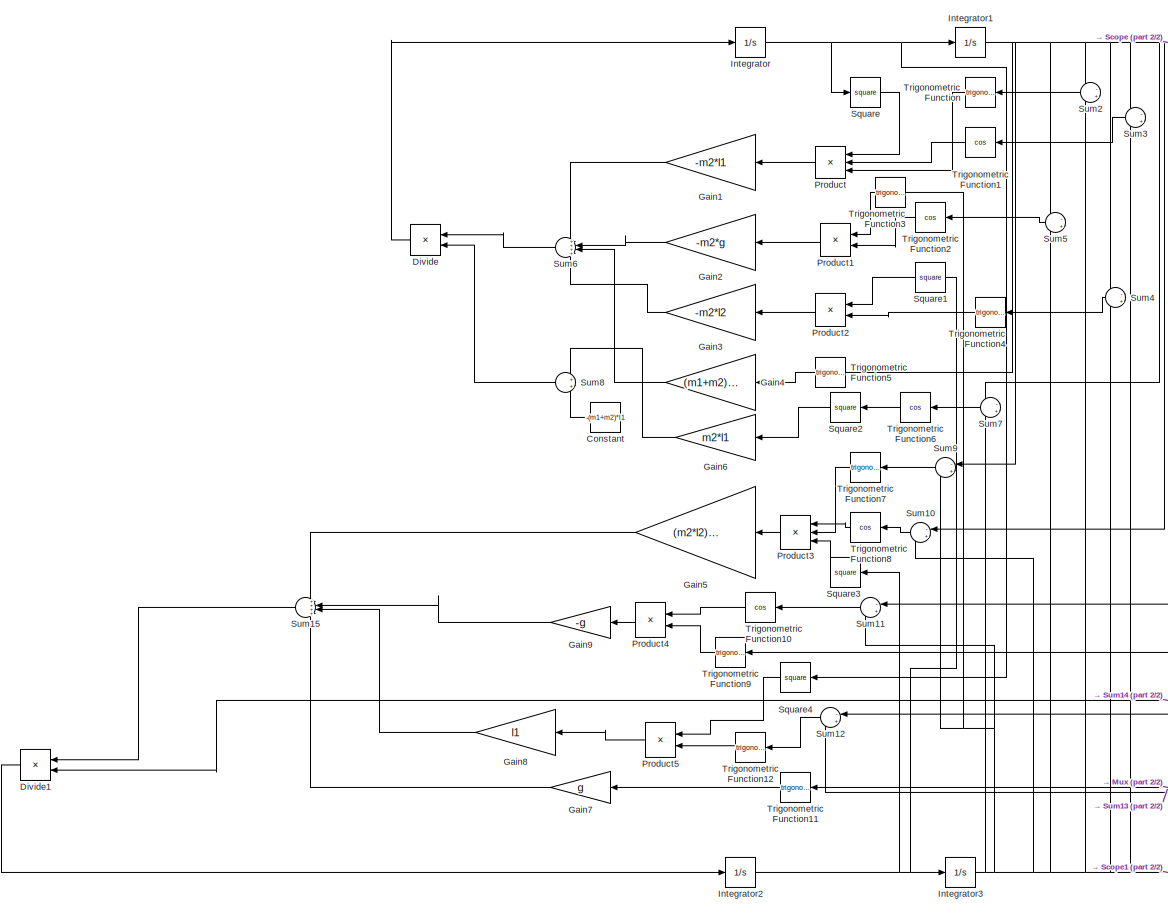
[diagram: root canvas - part 1/2, left side, full height]
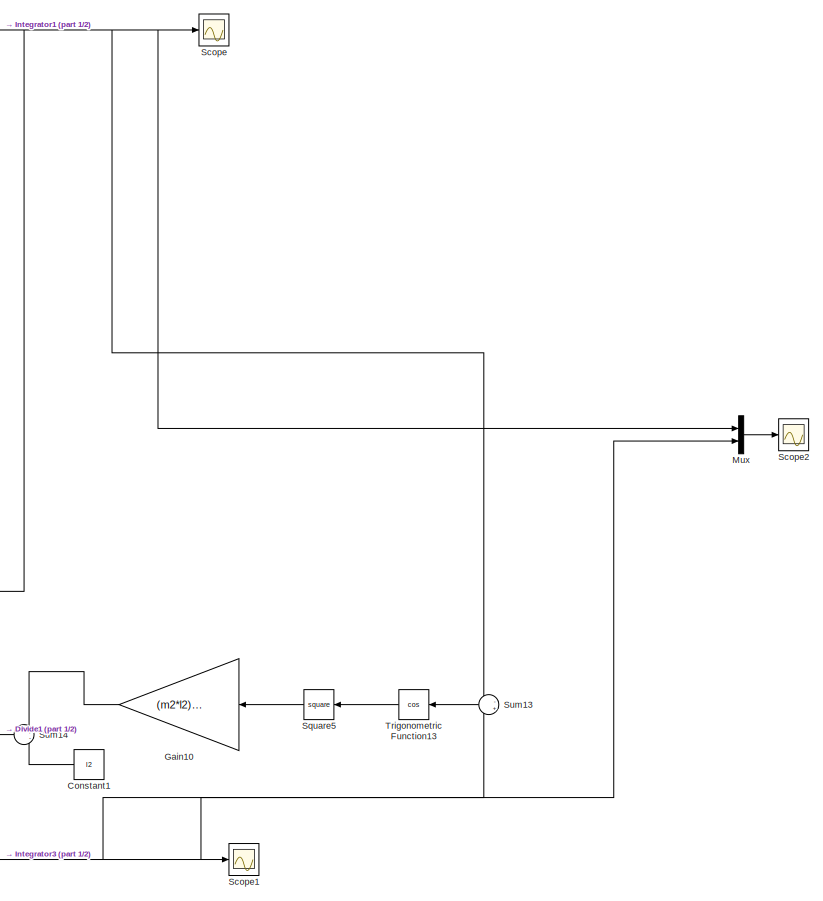
[diagram: root canvas - part 2/2, right side, full height]
MODEL slx_65d11037a7d4
KIND model
CONFIG AbsTol = auto
CONFIG EnableMultiTasking = off
CONFIG FixedStep = auto
CONFIG MaxStep = auto
CONFIG MinStep = auto
CONFIG RelTol = 1e-3
CONFIG SampleTimeConstraint = Unconstrained
CONFIG SolverName = ode23
CONFIG StartTime = 0.0
CONFIG StopTime = 200
BLOCK [Constant] Constant
  NameLocation = top
  Value = -(m1+m2)*l1
BLOCK [Constant] Constant1
  NameLocation = top
  Value = l2
BLOCK [Product] Divide
  Inputs = */
  NameLocation = top
BLOCK [Product] Divide1
  Inputs = */
  NameLocation = top
BLOCK [Gain] Gain1
  Gain = -m2*l1
  NameLocation = top
BLOCK [Gain] Gain10
  Gain = (m2*l2)/(m1+m2)
  NameLocation = top
BLOCK [Gain] Gain2
  Gain = -m2*g
  NameLocation = top
BLOCK [Gain] Gain3
  Gain = -m2*l2
  NameLocation = top
BLOCK [Gain] Gain4
  Gain = (m1+m2)*g
  NameLocation = top
BLOCK [Gain] Gain5
  Gain = (m2*l2)/(m1+m2)
  NameLocation = top
BLOCK [Gain] Gain6
  Gain = m2*l1
  NameLocation = top
BLOCK [Gain] Gain7
  Gain = g
  NameLocation = top
BLOCK [Gain] Gain8
  Gain = l1
  NameLocation = top
BLOCK [Gain] Gain9
  Gain = -g
  NameLocation = top
BLOCK [Integrator] Integrator
BLOCK [Integrator] Integrator1
BLOCK [Integrator] Integrator2
BLOCK [Integrator] Integrator3
  InitialCondition = 0.61086
BLOCK [Mux] Mux
  DisplayOption = bar
  Inputs = 2
BLOCK [Product] Product
  Inputs = 3
  NameLocation = top
BLOCK [Product] Product1
  NameLocation = top
BLOCK [Product] Product2
  NameLocation = top
BLOCK [Product] Product3
  Inputs = 3
  NameLocation = top
BLOCK [Product] Product4
  NameLocation = top
BLOCK [Product] Product5
  NameLocation = top
BLOCK [Scope] Scope
  Floating = off
  NumInputPorts = 1
  ScopeSpecificationString = Simulink.scopes.TimeScopeBlockCfg('CurrentConfiguration', extmgr.ConfigurationSet(extmgr.Configuration('Core','General UI',true),extmgr.Configuration('Core','Source UI',true),extmgr.Configuration('Sources','WiredSimulink',true),extmgr.Configuration('Visuals','Time Domain',true,'SerializedDisplays',{struct('MinYLimReal','-0.38689','MaxYLimReal','0.3781','YLabelReal','','MinYLimMag','0.00000','MaxYL...<+1358ch>
BLOCK [Scope] Scope1
  Floating = off
  NumInputPorts = 1
  ScopeSpecificationString = Simulink.scopes.TimeScopeBlockCfg('CurrentConfiguration', extmgr.ConfigurationSet(extmgr.Configuration('Core','General UI',true),extmgr.Configuration('Core','Source UI',true),extmgr.Configuration('Sources','WiredSimulink',true,'DataLoggingVariableName','ScopeData1'),extmgr.Configuration('Visuals','Time Domain',true,'SerializedDisplays',{struct('MinYLimReal','-0.73518','MaxYLimReal','0.76042','YLab...<+1399ch>
BLOCK [Scope] Scope2
  Floating = off
  NumInputPorts = 1
  ScopeSpecificationString = Simulink.scopes.TimeScopeBlockCfg('CurrentConfiguration', extmgr.ConfigurationSet(extmgr.Configuration('Core','General UI',true),extmgr.Configuration('Core','Source UI',true),extmgr.Configuration('Sources','WiredSimulink',true,'DataLoggingVariableName','ScopeData1'),extmgr.Configuration('Visuals','Time Domain',true,'SerializedDisplays',{struct('MinYLimReal','-0.73518','MaxYLimReal','0.76042','YLab...<+1413ch>
BLOCK [Math] Square
  Operator = square
BLOCK [Math] Square1
  NameLocation = top
  Operator = square
BLOCK [Math] Square2
  NameLocation = top
  Operator = square
BLOCK [Math] Square3
  NameLocation = top
  Operator = square
BLOCK [Math] Square4
  NameLocation = top
  Operator = square
BLOCK [Math] Square5
  NameLocation = top
  Operator = square
BLOCK [Sum] Sum10
  Inputs = -+
  NameLocation = top
BLOCK [Sum] Sum11
  Inputs = -+
  NameLocation = top
BLOCK [Sum] Sum12
  Inputs = -+
  NameLocation = top
BLOCK [Sum] Sum13
  Inputs = -+
  NameLocation = top
BLOCK [Sum] Sum14
  Inputs = +-
  NameLocation = top
BLOCK [Sum] Sum15
  Inputs = ++++
  NameLocation = top
BLOCK [Sum] Sum2
  Inputs = -+
  NameLocation = top
BLOCK [Sum] Sum3
  Inputs = -+
  NameLocation = top
BLOCK [Sum] Sum4
  Inputs = -+
  NameLocation = top
BLOCK [Sum] Sum5
  Inputs = -+
  NameLocation = top
BLOCK [Sum] Sum6
  Inputs = ++++
  NameLocation = top
BLOCK [Sum] Sum7
  Inputs = -+
  NameLocation = top
BLOCK [Sum] Sum8
  NameLocation = top
BLOCK [Sum] Sum9
  Inputs = -+
  NameLocation = top
BLOCK [Trigonometry] Trigonometric Function
  NameLocation = top
BLOCK [Trigonometry] Trigonometric Function1
  NameLocation = top
  Operator = cos
BLOCK [Trigonometry] Trigonometric Function10
  NameLocation = top
  Operator = cos
BLOCK [Trigonometry] Trigonometric Function11
  NameLocation = top
BLOCK [Trigonometry] Trigonometric Function12
  NameLocation = top
BLOCK [Trigonometry] Trigonometric Function13
  NameLocation = top
  Operator = cos
BLOCK [Trigonometry] Trigonometric Function2
  NameLocation = top
  Operator = cos
BLOCK [Trigonometry] Trigonometric Function3
  NameLocation = top
BLOCK [Trigonometry] Trigonometric Function4
  NameLocation = top
BLOCK [Trigonometry] Trigonometric Function5
  NameLocation = top
BLOCK [Trigonometry] Trigonometric Function6
  NameLocation = top
  Operator = cos
BLOCK [Trigonometry] Trigonometric Function7
  NameLocation = top
BLOCK [Trigonometry] Trigonometric Function8
  NameLocation = top
  Operator = cos
BLOCK [Trigonometry] Trigonometric Function9
  NameLocation = top
LINE Constant1:1 -> Sum14:2
LINE Constant:1 -> Sum8:2
LINE Divide1:1 -> Integrator2:1
LINE Divide:1 -> Integrator:1
LINE Gain10:1 -> Sum14:1
LINE Gain1:1 -> Sum6:1
LINE Gain2:1 -> Sum6:2
LINE Gain3:1 -> Sum6:4
LINE Gain4:1 -> Sum6:3
LINE Gain5:1 -> Sum15:1
LINE Gain6:1 -> Sum8:1
LINE Gain7:1 -> Sum15:4
LINE Gain8:1 -> Sum15:3
LINE Gain9:1 -> Sum15:2
NET Integrator1:1 -> Mux:1, Scope:1, Sum10:1, Sum11:1, Sum12:1, Sum13:1, Sum2:1, Sum3:1, Sum4:1, Sum5:1, Sum7:1, Sum9:1, Trigonometric Function5:1, Trigonometric Function9:1
NET Integrator2:1 -> Integrator3:1, Square1:1, Square3:1
NET Integrator3:1 -> Mux:2, Scope1:1, Sum10:2, Sum11:2, Sum12:2, Sum13:2, Sum2:2, Sum3:2, Sum4:2, Sum5:2, Sum7:2, Sum9:2, Trigonometric Function11:1, Trigonometric Function3:1
NET Integrator:1 -> Integrator1:1, Square4:1, Square:1
LINE Mux:1 -> Scope2:1
LINE Product1:1 -> Gain2:1
LINE Product2:1 -> Gain3:1
LINE Product3:1 -> Gain5:1
LINE Product4:1 -> Gain9:1
LINE Product5:1 -> Gain8:1
LINE Product:1 -> Gain1:1
LINE Square1:1 -> Product2:1
LINE Square2:1 -> Gain6:1
LINE Square3:1 -> Product3:3
LINE Square4:1 -> Product5:1
LINE Square5:1 -> Gain10:1
LINE Square:1 -> Product:1
LINE Sum10:1 -> Trigonometric Function8:1
LINE Sum11:1 -> Trigonometric Function10:1
LINE Sum12:1 -> Trigonometric Function12:1
LINE Sum13:1 -> Trigonometric Function13:1
LINE Sum14:1 -> Divide1:2
LINE Sum15:1 -> Divide1:1
LINE Sum2:1 -> Trigonometric Function:1
LINE Sum3:1 -> Trigonometric Function1:1
LINE Sum4:1 -> Trigonometric Function4:1
LINE Sum5:1 -> Trigonometric Function2:1
LINE Sum6:1 -> Divide:1
LINE Sum7:1 -> Trigonometric Function6:1
LINE Sum8:1 -> Divide:2
LINE Sum9:1 -> Trigonometric Function7:1
LINE Trigonometric Function10:1 -> Product4:1
LINE Trigonometric Function11:1 -> Gain7:1
LINE Trigonometric Function12:1 -> Product5:2
LINE Trigonometric Function13:1 -> Square5:1
LINE Trigonometric Function1:1 -> Product:2
LINE Trigonometric Function2:1 -> Product1:2
LINE Trigonometric Function3:1 -> Product1:1
LINE Trigonometric Function4:1 -> Product2:2
LINE Trigonometric Function5:1 -> Gain4:1
LINE Trigonometric Function6:1 -> Square2:1
LINE Trigonometric Function7:1 -> Product3:2
LINE Trigonometric Function8:1 -> Product3:1
LINE Trigonometric Function9:1 -> Product4:2
LINE Trigonometric Function:1 -> Product:3
note: NET lines group one-source signal fan-out (src -> all destinations, sorted); 1:1 wires keep LINE
